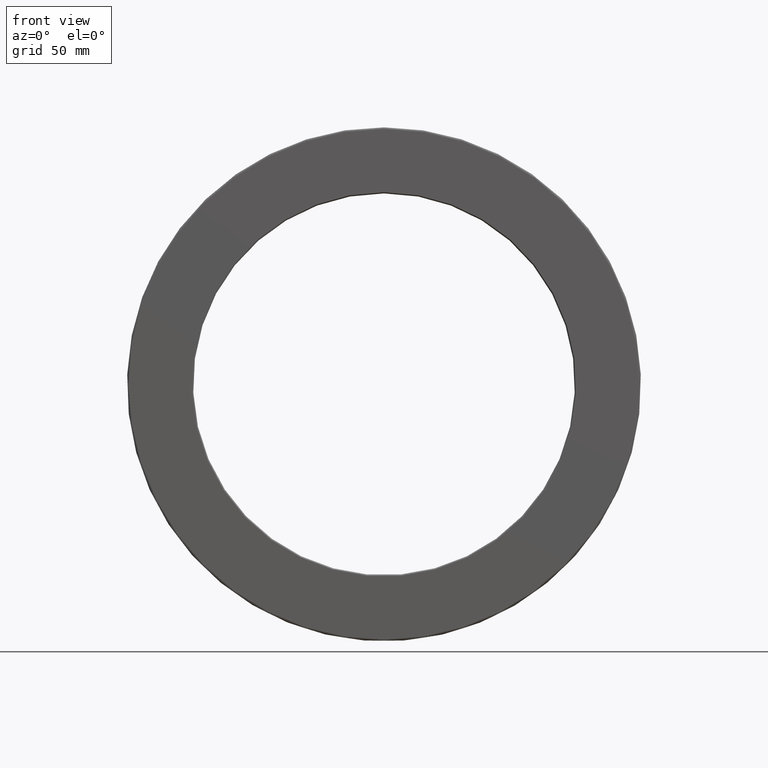
[diagram: clean part render]
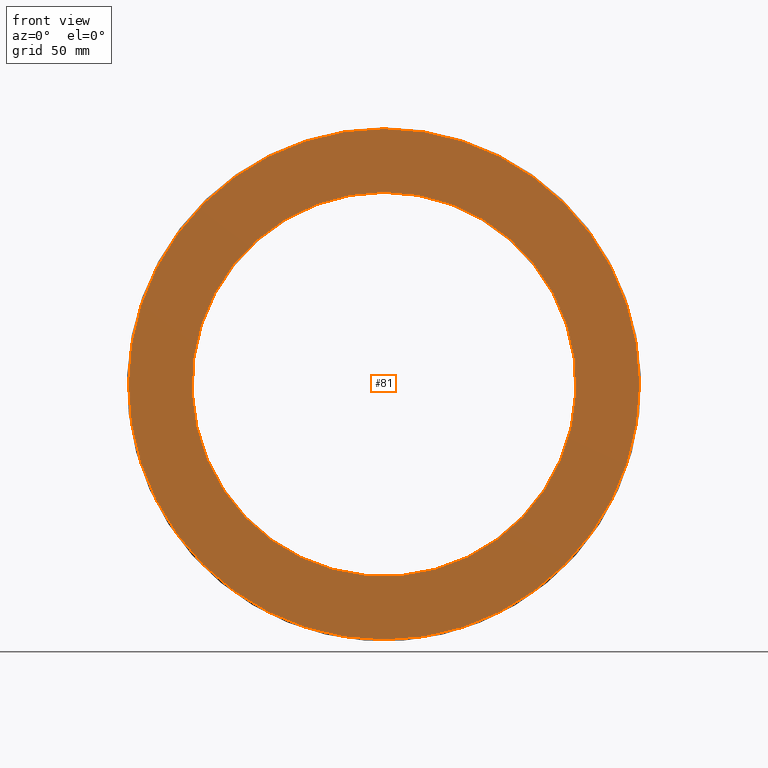
[diagram: same view with one face highlighted and labeled with its STEP entity id]
A machine part, front view. The second image highlights one B-rep face of the part: STEP entity #81.
In plain terms, the highlighted planar face has unit normal (-0, 1, 0).
Its self-contained STEP definition (entity closure, byte-faithful):
#12 = CIRCLE ( 'NONE', #497, 3.269999999999999100 ) ;
#15 = ORIENTED_EDGE ( 'NONE', *, *, #321, .F. ) ;
#31 = AXIS2_PLACEMENT_3D ( 'NONE', #225, #80, #545 ) ;
#59 = FACE_OUTER_BOUND ( 'NONE', #435, .T. ) ;
#80 = DIRECTION ( 'NONE',  ( -0.0000000000000000000, 1.000000000000000000, 0.0000000000000000000 ) ) ;
#81 = ADVANCED_FACE ( 'NONE', ( #59, #348 ), #404, .F. ) ;
#83 = CARTESIAN_POINT ( 'NONE',  ( 0.0000000000000000000, 0.0000000000000000000, 3.269999999999999100 ) ) ;
#105 = EDGE_CURVE ( 'NONE', #252, #252, #12, .T. ) ;
#140 = DIRECTION ( 'NONE',  ( 0.0000000000000000000, 0.0000000000000000000, 1.000000000000000000 ) ) ;
#225 = CARTESIAN_POINT ( 'NONE',  ( -5.819931260095682900E-032, -1.120484528651358600E-016, 0.0000000000000000000 ) ) ;
#252 = VERTEX_POINT ( 'NONE', #83 ) ;
#265 = CARTESIAN_POINT ( 'NONE',  ( 0.0000000000000000000, -2.240969057302716600E-016, 4.350000000000000500 ) ) ;
#282 = DIRECTION ( 'NONE',  ( -0.0000000000000000000, 1.000000000000000000, -0.0000000000000000000 ) ) ;
#298 = AXIS2_PLACEMENT_3D ( 'NONE', #513, #282, #371 ) ;
#321 = EDGE_CURVE ( 'NONE', #428, #428, #563, .T. ) ;
#348 = FACE_BOUND ( 'NONE', #572, .T. ) ;
#371 = DIRECTION ( 'NONE',  ( 0.0000000000000000000, 0.0000000000000000000, 1.000000000000000000 ) ) ;
#404 = PLANE ( 'NONE',  #31 ) ;
#428 = VERTEX_POINT ( 'NONE', #265 ) ;
#435 = EDGE_LOOP ( 'NONE', ( #15 ) ) ;
#497 = AXIS2_PLACEMENT_3D ( 'NONE', #599, #504, #140 ) ;
#504 = DIRECTION ( 'NONE',  ( -0.0000000000000000000, 1.000000000000000000, -0.0000000000000000000 ) ) ;
#513 = CARTESIAN_POINT ( 'NONE',  ( 0.0000000000000000000, -2.240969057302716600E-016, 0.0000000000000000000 ) ) ;
#545 = DIRECTION ( 'NONE',  ( 0.0000000000000000000, 0.0000000000000000000, 1.000000000000000000 ) ) ;
#563 = CIRCLE ( 'NONE', #298, 4.350000000000000500 ) ;
#572 = EDGE_LOOP ( 'NONE', ( #582 ) ) ;
#582 = ORIENTED_EDGE ( 'NONE', *, *, #105, .T. ) ;
#599 = CARTESIAN_POINT ( 'NONE',  ( 0.0000000000000000000, 0.0000000000000000000, 0.0000000000000000000 ) ) ;